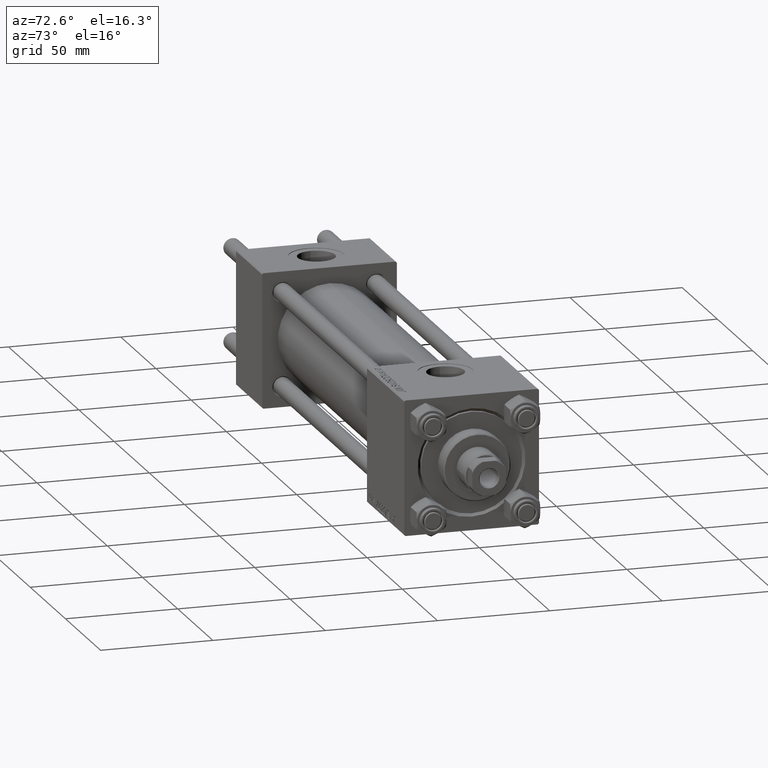
[diagram: clean part render]
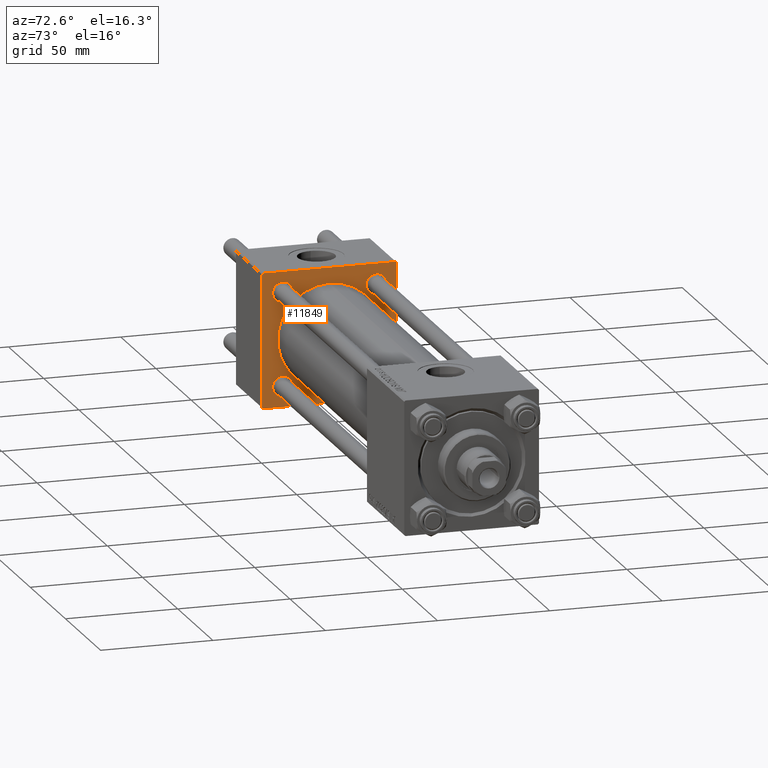
[diagram: same view with one face highlighted and labeled with its STEP entity id]
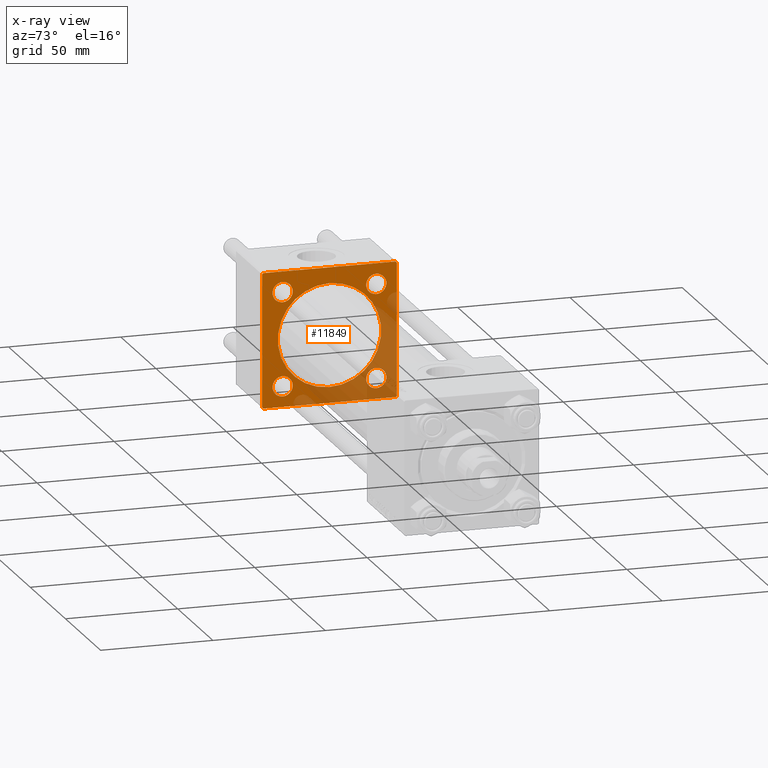
[diagram: x-ray of the same camera — body ghosted, the highlighted face saturated]
A machine part, auxiliary view. The second image highlights one B-rep face of the part: STEP entity #11849.
The next image is the same camera in x-ray: the body ghosted, the highlighted face saturated — about 35% of this face is hidden behind the body in this view.
In plain terms, the highlighted planar face has unit normal (-1, 0, 0).
Its self-contained STEP definition (entity closure, byte-faithful):
#908 = VERTEX_POINT ( 'NONE', #38878 ) ;
#1375 = EDGE_CURVE ( 'NONE', #13346, #25153, #36011, .T. ) ;
#1818 = DIRECTION ( 'NONE',  ( -1.000000000000000000, 0.000000000000000000, -0.000000000000000000 ) ) ;
#2072 = CARTESIAN_POINT ( 'NONE',  ( 37.00000000000000000, -30.00000000000000000, -29.50000000000001776 ) ) ;
#2605 = CIRCLE ( 'NONE', #23533, 4.500000000000003553 ) ;
#2867 = ORIENTED_EDGE ( 'NONE', *, *, #49756, .T. ) ;
#2937 = VERTEX_POINT ( 'NONE', #3221 ) ;
#3221 = CARTESIAN_POINT ( 'NONE',  ( 37.00000000000000000, 29.49999999999999289, 30.00000000000000000 ) ) ;
#3229 = AXIS2_PLACEMENT_3D ( 'NONE', #45059, #37499, #28938 ) ;
#3667 = VECTOR ( 'NONE', #40248, 1000.000000000000000 ) ;
#3718 = CIRCLE ( 'NONE', #32744, 4.500000000000003553 ) ;
#3925 = VECTOR ( 'NONE', #33975, 1000.000000000000114 ) ;
#4465 = LINE ( 'NONE', #23887, #29994 ) ;
#5565 = DIRECTION ( 'NONE',  ( 0.000000000000000000, 0.000000000000000000, -1.000000000000000000 ) ) ;
#6473 = EDGE_CURVE ( 'NONE', #49392, #908, #26639, .T. ) ;
#6585 = VERTEX_POINT ( 'NONE', #23595 ) ;
#6951 = CARTESIAN_POINT ( 'NONE',  ( 37.00000000000000000, 20.84999999999999787, 25.35000000000000497 ) ) ;
#7149 = EDGE_CURVE ( 'NONE', #32198, #30575, #39114, .T. ) ;
#7150 = VECTOR ( 'NONE', #16785, 1000.000000000000114 ) ;
#7446 = CARTESIAN_POINT ( 'NONE',  ( 37.00000000000000000, 29.99999999999999289, 30.00000000000000000 ) ) ;
#7467 = CARTESIAN_POINT ( 'NONE',  ( 37.00000000000000711, 0.000000000000000000, 23.00000000000000000 ) ) ;
#7469 = CARTESIAN_POINT ( 'NONE',  ( 37.00000000000000000, -20.84999999999999076, -20.85000000000000497 ) ) ;
#7634 = CARTESIAN_POINT ( 'NONE',  ( 37.00000000000000000, -29.50000000000001066, -30.00000000000000711 ) ) ;
#7876 = DIRECTION ( 'NONE',  ( 0.000000000000000000, 0.000000000000000000, 1.000000000000000000 ) ) ;
#8034 = VECTOR ( 'NONE', #49777, 1000.000000000000114 ) ;
#8223 = DIRECTION ( 'NONE',  ( 0.000000000000000000, 0.000000000000000000, 1.000000000000000000 ) ) ;
#8226 = LINE ( 'NONE', #39001, #7150 ) ;
#8406 = EDGE_CURVE ( 'NONE', #25153, #13346, #47568, .T. ) ;
#8425 = EDGE_LOOP ( 'NONE', ( #14330, #24293 ) ) ;
#9588 = AXIS2_PLACEMENT_3D ( 'NONE', #29048, #1818, #43438 ) ;
#10010 = CARTESIAN_POINT ( 'NONE',  ( 37.00000000000000000, 29.49999999999999289, 30.00000000000000000 ) ) ;
#10480 = ORIENTED_EDGE ( 'NONE', *, *, #7149, .T. ) ;
#10702 = DIRECTION ( 'NONE',  ( -1.000000000000000000, 0.000000000000000000, -0.000000000000000000 ) ) ;
#10802 = ORIENTED_EDGE ( 'NONE', *, *, #37924, .T. ) ;
#11075 = DIRECTION ( 'NONE',  ( 1.000000000000000000, -0.000000000000000000, 0.000000000000000000 ) ) ;
#11519 = EDGE_LOOP ( 'NONE', ( #13467, #38268, #40364, #17543, #46977, #45729, #10480, #2867 ) ) ;
#11638 = VERTEX_POINT ( 'NONE', #30191 ) ;
#11824 = ORIENTED_EDGE ( 'NONE', *, *, #1375, .T. ) ;
#11849 = ADVANCED_FACE ( 'NONE', ( #14487, #32927, #17527, #40991, #48315, #13746 ), #29896, .F. ) ;
#13115 = DIRECTION ( 'NONE',  ( 0.000000000000000000, 0.000000000000000000, 1.000000000000000000 ) ) ;
#13346 = VERTEX_POINT ( 'NONE', #47708 ) ;
#13407 = DIRECTION ( 'NONE',  ( 0.000000000000000000, 0.000000000000000000, 1.000000000000000000 ) ) ;
#13467 = ORIENTED_EDGE ( 'NONE', *, *, #17577, .F. ) ;
#13707 = DIRECTION ( 'NONE',  ( 0.000000000000000000, 0.000000000000000000, 1.000000000000000000 ) ) ;
#13746 = FACE_OUTER_BOUND ( 'NONE', #11519, .T. ) ;
#13991 = CARTESIAN_POINT ( 'NONE',  ( 37.00000000000000000, 0.000000000000000000, 0.000000000000000000 ) ) ;
#14027 = CARTESIAN_POINT ( 'NONE',  ( 37.00000000000000000, 29.99999999999999289, 29.50000000000000000 ) ) ;
#14136 = EDGE_LOOP ( 'NONE', ( #49899, #17024 ) ) ;
#14272 = EDGE_CURVE ( 'NONE', #19032, #15802, #49576, .T. ) ;
#14330 = ORIENTED_EDGE ( 'NONE', *, *, #27530, .T. ) ;
#14487 = FACE_BOUND ( 'NONE', #25230, .T. ) ;
#15233 = AXIS2_PLACEMENT_3D ( 'NONE', #44941, #33103, #13407 ) ;
#15351 = CARTESIAN_POINT ( 'NONE',  ( 37.00000000000000711, 0.000000000000000000, 0.000000000000000000 ) ) ;
#15634 = EDGE_CURVE ( 'NONE', #2937, #16264, #30159, .T. ) ;
#15694 = ORIENTED_EDGE ( 'NONE', *, *, #8406, .T. ) ;
#15802 = VERTEX_POINT ( 'NONE', #40473 ) ;
#16105 = AXIS2_PLACEMENT_3D ( 'NONE', #26810, #38917, #13115 ) ;
#16264 = VERTEX_POINT ( 'NONE', #16834 ) ;
#16785 = DIRECTION ( 'NONE',  ( -0.000000000000000000, -0.7071067811865474617, -0.7071067811865474617 ) ) ;
#16834 = CARTESIAN_POINT ( 'NONE',  ( 37.00000000000000000, -29.49999999999998579, 29.99999999999999289 ) ) ;
#17024 = ORIENTED_EDGE ( 'NONE', *, *, #47623, .T. ) ;
#17527 = FACE_BOUND ( 'NONE', #8425, .T. ) ;
#17543 = ORIENTED_EDGE ( 'NONE', *, *, #24826, .T. ) ;
#17577 = EDGE_CURVE ( 'NONE', #11638, #27696, #40980, .T. ) ;
#17614 = CARTESIAN_POINT ( 'NONE',  ( 37.00000000000000000, -20.84999999999999076, 25.35000000000000853 ) ) ;
#19032 = VERTEX_POINT ( 'NONE', #7467 ) ;
#19335 = CIRCLE ( 'NONE', #3229, 23.00000000000000000 ) ;
#19813 = DIRECTION ( 'NONE',  ( -1.000000000000000000, 0.000000000000000000, -0.000000000000000000 ) ) ;
#22101 = DIRECTION ( 'NONE',  ( 0.000000000000000000, 0.000000000000000000, -1.000000000000000000 ) ) ;
#22177 = AXIS2_PLACEMENT_3D ( 'NONE', #15351, #11075, #26231 ) ;
#22362 = LINE ( 'NONE', #10010, #3925 ) ;
#23533 = AXIS2_PLACEMENT_3D ( 'NONE', #34986, #34746, #31197 ) ;
#23595 = CARTESIAN_POINT ( 'NONE',  ( 37.00000000000000000, 20.84999999999999787, 16.34999999999999787 ) ) ;
#23597 = VERTEX_POINT ( 'NONE', #26938 ) ;
#23887 = CARTESIAN_POINT ( 'NONE',  ( 37.00000000000000000, 29.99999999999999289, -29.50000000000000000 ) ) ;
#24292 = ORIENTED_EDGE ( 'NONE', *, *, #49428, .F. ) ;
#24293 = ORIENTED_EDGE ( 'NONE', *, *, #26294, .T. ) ;
#24826 = EDGE_CURVE ( 'NONE', #49392, #2937, #22362, .T. ) ;
#25153 = VERTEX_POINT ( 'NONE', #32609 ) ;
#25230 = EDGE_LOOP ( 'NONE', ( #11824, #15694 ) ) ;
#25344 = CARTESIAN_POINT ( 'NONE',  ( 37.00000000000000000, 29.99999999999999289, -30.00000000000000000 ) ) ;
#25784 = EDGE_CURVE ( 'NONE', #16264, #32198, #8226, .T. ) ;
#26231 = DIRECTION ( 'NONE',  ( 0.000000000000000000, 0.000000000000000000, 1.000000000000000000 ) ) ;
#26294 = EDGE_CURVE ( 'NONE', #47900, #23597, #26498, .T. ) ;
#26498 = CIRCLE ( 'NONE', #34564, 4.500000000000003553 ) ;
#26559 = CARTESIAN_POINT ( 'NONE',  ( 37.00000000000000000, 20.84999999999999787, -20.85000000000000142 ) ) ;
#26571 = VERTEX_POINT ( 'NONE', #40415 ) ;
#26639 = LINE ( 'NONE', #49583, #29743 ) ;
#26810 = CARTESIAN_POINT ( 'NONE',  ( 37.00000000000000000, -20.84999999999999076, -20.85000000000000497 ) ) ;
#26938 = CARTESIAN_POINT ( 'NONE',  ( 37.00000000000000000, -20.84999999999999076, 16.35000000000000142 ) ) ;
#27530 = EDGE_CURVE ( 'NONE', #23597, #47900, #35403, .T. ) ;
#27696 = VERTEX_POINT ( 'NONE', #30298 ) ;
#28938 = DIRECTION ( 'NONE',  ( 0.000000000000000000, 0.000000000000000000, 1.000000000000000000 ) ) ;
#29018 = CARTESIAN_POINT ( 'NONE',  ( 37.00000000000000000, -30.00000000000000000, 29.99999999999999289 ) ) ;
#29048 = CARTESIAN_POINT ( 'NONE',  ( 37.00000000000000000, 20.84999999999999787, -20.85000000000000142 ) ) ;
#29743 = VECTOR ( 'NONE', #22101, 1000.000000000000000 ) ;
#29873 = LINE ( 'NONE', #7634, #8034 ) ;
#29896 = PLANE ( 'NONE',  #49509 ) ;
#29994 = VECTOR ( 'NONE', #38266, 999.9999999999998863 ) ;
#30159 = LINE ( 'NONE', #7446, #32693 ) ;
#30191 = CARTESIAN_POINT ( 'NONE',  ( 37.00000000000000000, 29.49999999999997868, -30.00000000000000000 ) ) ;
#30298 = CARTESIAN_POINT ( 'NONE',  ( 37.00000000000000000, -29.50000000000000000, -30.00000000000000711 ) ) ;
#30575 = VERTEX_POINT ( 'NONE', #2072 ) ;
#30997 = EDGE_CURVE ( 'NONE', #6585, #37190, #40382, .T. ) ;
#31197 = DIRECTION ( 'NONE',  ( 0.000000000000000000, 0.000000000000000000, 1.000000000000000000 ) ) ;
#31383 = VECTOR ( 'NONE', #5565, 1000.000000000000000 ) ;
#32198 = VERTEX_POINT ( 'NONE', #43114 ) ;
#32609 = CARTESIAN_POINT ( 'NONE',  ( 37.00000000000000000, -20.84999999999999076, -16.35000000000000142 ) ) ;
#32693 = VECTOR ( 'NONE', #49340, 1000.000000000000000 ) ;
#32744 = AXIS2_PLACEMENT_3D ( 'NONE', #26559, #34876, #7876 ) ;
#32927 = FACE_BOUND ( 'NONE', #14136, .T. ) ;
#32962 = DIRECTION ( 'NONE',  ( 0.000000000000000000, 0.000000000000000000, 1.000000000000000000 ) ) ;
#33103 = DIRECTION ( 'NONE',  ( -1.000000000000000000, 0.000000000000000000, -0.000000000000000000 ) ) ;
#33596 = AXIS2_PLACEMENT_3D ( 'NONE', #7469, #19813, #8223 ) ;
#33975 = DIRECTION ( 'NONE',  ( 0.000000000000000000, -0.7071067811865474617, 0.7071067811865474617 ) ) ;
#34564 = AXIS2_PLACEMENT_3D ( 'NONE', #37188, #44491, #13707 ) ;
#34746 = DIRECTION ( 'NONE',  ( -1.000000000000000000, 0.000000000000000000, -0.000000000000000000 ) ) ;
#34876 = DIRECTION ( 'NONE',  ( -1.000000000000000000, 0.000000000000000000, -0.000000000000000000 ) ) ;
#34986 = CARTESIAN_POINT ( 'NONE',  ( 37.00000000000000000, 20.84999999999999787, 20.85000000000000142 ) ) ;
#35403 = CIRCLE ( 'NONE', #15233, 4.500000000000003553 ) ;
#35634 = ORIENTED_EDGE ( 'NONE', *, *, #30997, .T. ) ;
#36011 = CIRCLE ( 'NONE', #33596, 4.500000000000003553 ) ;
#36333 = EDGE_LOOP ( 'NONE', ( #45033, #24292 ) ) ;
#37143 = AXIS2_PLACEMENT_3D ( 'NONE', #40044, #44319, #32962 ) ;
#37188 = CARTESIAN_POINT ( 'NONE',  ( 37.00000000000000000, -20.84999999999999076, 20.85000000000000497 ) ) ;
#37190 = VERTEX_POINT ( 'NONE', #6951 ) ;
#37499 = DIRECTION ( 'NONE',  ( 1.000000000000000000, -0.000000000000000000, 0.000000000000000000 ) ) ;
#37869 = EDGE_CURVE ( 'NONE', #11638, #908, #4465, .T. ) ;
#37924 = EDGE_CURVE ( 'NONE', #37190, #6585, #2605, .T. ) ;
#38266 = DIRECTION ( 'NONE',  ( -0.000000000000000000, 0.7071067811865574537, 0.7071067811865376918 ) ) ;
#38268 = ORIENTED_EDGE ( 'NONE', *, *, #37869, .T. ) ;
#38878 = CARTESIAN_POINT ( 'NONE',  ( 37.00000000000000000, 29.99999999999999289, -29.50000000000000000 ) ) ;
#38917 = DIRECTION ( 'NONE',  ( -1.000000000000000000, 0.000000000000000000, -0.000000000000000000 ) ) ;
#39001 = CARTESIAN_POINT ( 'NONE',  ( 37.00000000000000000, -30.00000000000000000, 29.49999999999999289 ) ) ;
#39114 = LINE ( 'NONE', #29018, #31383 ) ;
#39645 = EDGE_CURVE ( 'NONE', #40469, #26571, #3718, .T. ) ;
#40044 = CARTESIAN_POINT ( 'NONE',  ( 37.00000000000000000, 20.84999999999999787, 20.85000000000000142 ) ) ;
#40248 = DIRECTION ( 'NONE',  ( 0.000000000000000000, -1.000000000000000000, -1.156482317317871725E-16 ) ) ;
#40364 = ORIENTED_EDGE ( 'NONE', *, *, #6473, .F. ) ;
#40382 = CIRCLE ( 'NONE', #37143, 4.500000000000003553 ) ;
#40415 = CARTESIAN_POINT ( 'NONE',  ( 37.00000000000000000, 20.84999999999999787, -16.34999999999999787 ) ) ;
#40469 = VERTEX_POINT ( 'NONE', #44992 ) ;
#40473 = CARTESIAN_POINT ( 'NONE',  ( 37.00000000000000711, 2.816687638038912352E-15, -23.00000000000000000 ) ) ;
#40980 = LINE ( 'NONE', #25344, #3667 ) ;
#40991 = FACE_BOUND ( 'NONE', #43814, .T. ) ;
#43114 = CARTESIAN_POINT ( 'NONE',  ( 37.00000000000000000, -30.00000000000000000, 29.49999999999999289 ) ) ;
#43438 = DIRECTION ( 'NONE',  ( 0.000000000000000000, 0.000000000000000000, 1.000000000000000000 ) ) ;
#43814 = EDGE_LOOP ( 'NONE', ( #35634, #10802 ) ) ;
#44319 = DIRECTION ( 'NONE',  ( -1.000000000000000000, 0.000000000000000000, -0.000000000000000000 ) ) ;
#44491 = DIRECTION ( 'NONE',  ( -1.000000000000000000, 0.000000000000000000, -0.000000000000000000 ) ) ;
#44941 = CARTESIAN_POINT ( 'NONE',  ( 37.00000000000000000, -20.84999999999999076, 20.85000000000000497 ) ) ;
#44992 = CARTESIAN_POINT ( 'NONE',  ( 37.00000000000000000, 20.84999999999999787, -25.35000000000000497 ) ) ;
#45033 = ORIENTED_EDGE ( 'NONE', *, *, #14272, .F. ) ;
#45059 = CARTESIAN_POINT ( 'NONE',  ( 37.00000000000000711, 0.000000000000000000, 0.000000000000000000 ) ) ;
#45279 = DIRECTION ( 'NONE',  ( -0.000000000000000000, 0.000000000000000000, 1.000000000000000000 ) ) ;
#45729 = ORIENTED_EDGE ( 'NONE', *, *, #25784, .T. ) ;
#46977 = ORIENTED_EDGE ( 'NONE', *, *, #15634, .T. ) ;
#47568 = CIRCLE ( 'NONE', #16105, 4.500000000000003553 ) ;
#47623 = EDGE_CURVE ( 'NONE', #26571, #40469, #49058, .T. ) ;
#47708 = CARTESIAN_POINT ( 'NONE',  ( 37.00000000000000000, -20.84999999999999076, -25.35000000000000853 ) ) ;
#47900 = VERTEX_POINT ( 'NONE', #17614 ) ;
#48315 = FACE_BOUND ( 'NONE', #36333, .T. ) ;
#49058 = CIRCLE ( 'NONE', #9588, 4.500000000000003553 ) ;
#49340 = DIRECTION ( 'NONE',  ( 0.000000000000000000, -1.000000000000000000, -1.156482317317871725E-16 ) ) ;
#49392 = VERTEX_POINT ( 'NONE', #14027 ) ;
#49428 = EDGE_CURVE ( 'NONE', #15802, #19032, #19335, .T. ) ;
#49509 = AXIS2_PLACEMENT_3D ( 'NONE', #13991, #10702, #45279 ) ;
#49576 = CIRCLE ( 'NONE', #22177, 23.00000000000000000 ) ;
#49583 = CARTESIAN_POINT ( 'NONE',  ( 37.00000000000000000, 29.99999999999999289, 30.00000000000000000 ) ) ;
#49756 = EDGE_CURVE ( 'NONE', #30575, #27696, #29873, .T. ) ;
#49777 = DIRECTION ( 'NONE',  ( 0.000000000000000000, 0.7071067811865474617, -0.7071067811865474617 ) ) ;
#49899 = ORIENTED_EDGE ( 'NONE', *, *, #39645, .T. ) ;